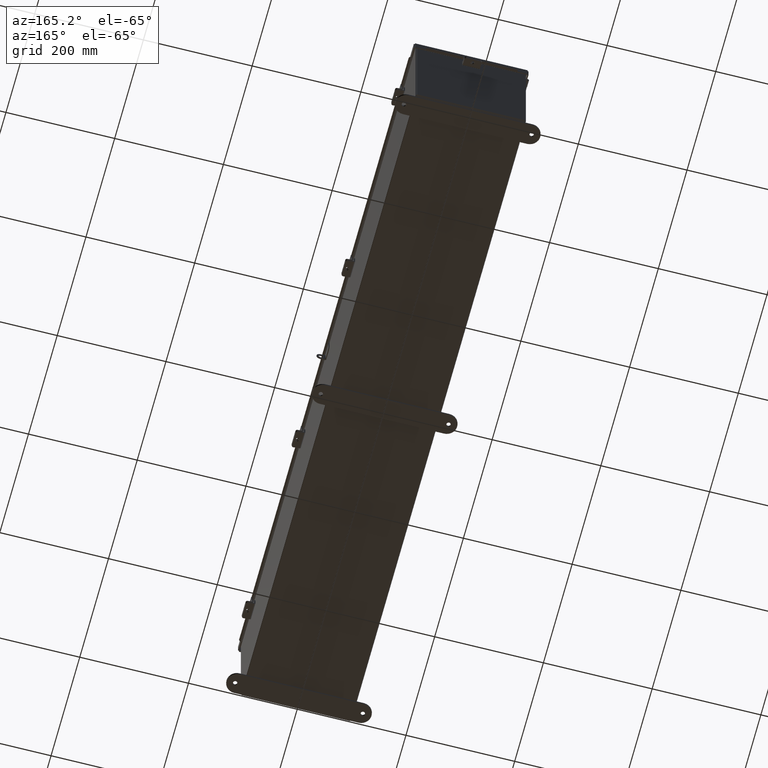
[diagram: clean part render]
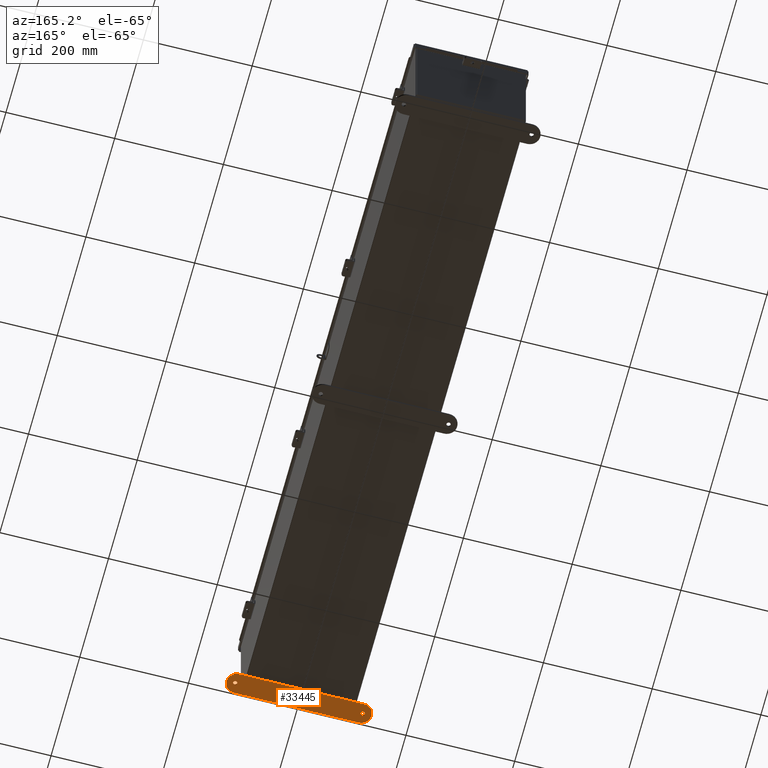
[diagram: same view with one face highlighted and labeled with its STEP entity id]
A machine part, auxiliary view. The second image highlights one B-rep face of the part: STEP entity #33445.
In plain terms, the highlighted planar face has unit normal (0, 0, -1).
Its self-contained STEP definition (entity closure, byte-faithful):
#302 = VERTEX_POINT ( 'NONE', #5280 ) ;
#826 = EDGE_LOOP ( 'NONE', ( #4222, #20937 ) ) ;
#994 = EDGE_CURVE ( 'NONE', #302, #26158, #13203, .T. ) ;
#1047 = ORIENTED_EDGE ( 'NONE', *, *, #28098, .F. ) ;
#2002 = VERTEX_POINT ( 'NONE', #11454 ) ;
#2132 = VECTOR ( 'NONE', #25458, 39.37007874015748100 ) ;
#2351 = CIRCLE ( 'NONE', #35566, 0.1564999999999992800 ) ;
#2485 = DIRECTION ( 'NONE',  ( 0.0000000000000000000, 0.0000000000000000000, -1.000000000000000000 ) ) ;
#2965 = VECTOR ( 'NONE', #33875, 39.37007874015748100 ) ;
#3538 = EDGE_LOOP ( 'NONE', ( #23013, #34866, #32052, #1047, #27850 ) ) ;
#3853 = VERTEX_POINT ( 'NONE', #30698 ) ;
#3913 = VERTEX_POINT ( 'NONE', #15419 ) ;
#4222 = ORIENTED_EDGE ( 'NONE', *, *, #13108, .T. ) ;
#4689 = DIRECTION ( 'NONE',  ( 0.0000000000000000000, 0.0000000000000000000, 1.000000000000000000 ) ) ;
#5280 = CARTESIAN_POINT ( 'NONE',  ( -4.499999999999999100, 1.162094064949611600, -0.1345000000000000100 ) ) ;
#5654 = VERTEX_POINT ( 'NONE', #20843 ) ;
#5904 = VERTEX_POINT ( 'NONE', #9669 ) ;
#5935 = AXIS2_PLACEMENT_3D ( 'NONE', #15117, #15109, #15071 ) ;
#6355 = ORIENTED_EDGE ( 'NONE', *, *, #34553, .F. ) ;
#7357 = AXIS2_PLACEMENT_3D ( 'NONE', #24711, #4689, #17646 ) ;
#8538 = CARTESIAN_POINT ( 'NONE',  ( -4.499999999999999100, -0.3379059350503894100, -0.1345000000000000100 ) ) ;
#9639 = EDGE_LOOP ( 'NONE', ( #10336, #6355 ) ) ;
#9669 = CARTESIAN_POINT ( 'NONE',  ( 4.499999999999999100, -0.3379059350503894100, -0.1345000000000000100 ) ) ;
#10336 = ORIENTED_EDGE ( 'NONE', *, *, #15352, .F. ) ;
#10364 = EDGE_CURVE ( 'NONE', #34980, #32183, #11058, .T. ) ;
#11058 = CIRCLE ( 'NONE', #31258, 0.1564999999999992800 ) ;
#11454 = CARTESIAN_POINT ( 'NONE',  ( 4.499999999999999100, 1.162094064949611600, -0.1345000000000000100 ) ) ;
#12457 = DIRECTION ( 'NONE',  ( 0.0000000000000000000, 0.0000000000000000000, -1.000000000000000000 ) ) ;
#13108 = EDGE_CURVE ( 'NONE', #32183, #34980, #2351, .T. ) ;
#13203 = CIRCLE ( 'NONE', #7357, 0.7499999999999998900 ) ;
#13216 = DIRECTION ( 'NONE',  ( 0.0000000000000000000, 0.0000000000000000000, 1.000000000000000000 ) ) ;
#13448 = EDGE_CURVE ( 'NONE', #5904, #3853, #20784, .T. ) ;
#15071 = DIRECTION ( 'NONE',  ( -1.000000000000000000, 0.0000000000000000000, 0.0000000000000000000 ) ) ;
#15109 = DIRECTION ( 'NONE',  ( 0.0000000000000000000, 0.0000000000000000000, 1.000000000000000000 ) ) ;
#15117 = CARTESIAN_POINT ( 'NONE',  ( 4.499999999999999100, 0.4120940649496110900, -0.1345000000000000100 ) ) ;
#15352 = EDGE_CURVE ( 'NONE', #5654, #3913, #29916, .T. ) ;
#15419 = CARTESIAN_POINT ( 'NONE',  ( 4.468500000000000600, 0.4120940649496067100, -0.1345000000000000100 ) ) ;
#15628 = FACE_BOUND ( 'NONE', #9639, .T. ) ;
#15778 = AXIS2_PLACEMENT_3D ( 'NONE', #29310, #12457, #32111 ) ;
#16433 = CARTESIAN_POINT ( 'NONE',  ( -4.499999999999999100, -0.3379059350503894100, -0.1345000000000000100 ) ) ;
#17388 = FACE_OUTER_BOUND ( 'NONE', #3538, .T. ) ;
#17646 = DIRECTION ( 'NONE',  ( 1.000000000000000000, 0.0000000000000000000, 0.0000000000000000000 ) ) ;
#18688 = EDGE_CURVE ( 'NONE', #3853, #2002, #29628, .T. ) ;
#20784 = CIRCLE ( 'NONE', #5935, 0.7500000000000010000 ) ;
#20843 = CARTESIAN_POINT ( 'NONE',  ( 4.781499999999999400, 0.4120940649496067100, -0.1345000000000000100 ) ) ;
#20937 = ORIENTED_EDGE ( 'NONE', *, *, #10364, .T. ) ;
#21667 = DIRECTION ( 'NONE',  ( -1.000000000000000000, 0.0000000000000000000, 0.0000000000000000000 ) ) ;
#21715 = CIRCLE ( 'NONE', #15778, 0.1564999999999992800 ) ;
#21749 = DIRECTION ( 'NONE',  ( -0.0000000000000000000, -0.0000000000000000000, 1.000000000000000000 ) ) ;
#21758 = CARTESIAN_POINT ( 'NONE',  ( -4.625000000000000000, 0.4120940649496067100, -0.1345000000000000100 ) ) ;
#22128 = DIRECTION ( 'NONE',  ( -1.000000000000000000, 0.0000000000000000000, 0.0000000000000000000 ) ) ;
#23013 = ORIENTED_EDGE ( 'NONE', *, *, #13448, .F. ) ;
#23019 = EDGE_CURVE ( 'NONE', #26158, #5904, #24571, .T. ) ;
#24571 = LINE ( 'NONE', #8538, #2132 ) ;
#24711 = CARTESIAN_POINT ( 'NONE',  ( -4.499999999999999100, 0.4120940649496110900, -0.1345000000000000100 ) ) ;
#25458 = DIRECTION ( 'NONE',  ( 1.000000000000000000, -1.214154663850783900E-016, 0.0000000000000000000 ) ) ;
#26158 = VERTEX_POINT ( 'NONE', #16433 ) ;
#26982 = DIRECTION ( 'NONE',  ( -1.000000000000000000, 0.0000000000000000000, 0.0000000000000000000 ) ) ;
#27011 = DIRECTION ( 'NONE',  ( 0.0000000000000000000, 0.0000000000000000000, -1.000000000000000000 ) ) ;
#27051 = CARTESIAN_POINT ( 'NONE',  ( 4.625000000000000000, 0.4120940649496067100, -0.1345000000000000100 ) ) ;
#27396 = CARTESIAN_POINT ( 'NONE',  ( -4.625000000000000000, 0.4120940649496067100, -0.1345000000000000100 ) ) ;
#27532 = AXIS2_PLACEMENT_3D ( 'NONE', #30065, #13216, #32879 ) ;
#27678 = CARTESIAN_POINT ( 'NONE',  ( 4.499999999999999100, 0.4120940649496110900, -0.1345000000000000100 ) ) ;
#27850 = ORIENTED_EDGE ( 'NONE', *, *, #18688, .F. ) ;
#28098 = EDGE_CURVE ( 'NONE', #2002, #302, #31081, .T. ) ;
#29310 = CARTESIAN_POINT ( 'NONE',  ( 4.625000000000000000, 0.4120940649496067100, -0.1345000000000000100 ) ) ;
#29628 = CIRCLE ( 'NONE', #27532, 0.7500000000000010000 ) ;
#29916 = CIRCLE ( 'NONE', #34934, 0.1564999999999992800 ) ;
#30065 = CARTESIAN_POINT ( 'NONE',  ( 4.499999999999999100, 0.4120940649496110900, -0.1345000000000000100 ) ) ;
#30572 = FACE_BOUND ( 'NONE', #826, .T. ) ;
#30698 = CARTESIAN_POINT ( 'NONE',  ( 5.250000000000000900, 0.4120940649496110900, -0.1345000000000000100 ) ) ;
#31047 = CARTESIAN_POINT ( 'NONE',  ( -4.499999999999999100, 1.162094064949611600, -0.1345000000000000100 ) ) ;
#31081 = LINE ( 'NONE', #31047, #2965 ) ;
#31258 = AXIS2_PLACEMENT_3D ( 'NONE', #27396, #33361, #33219 ) ;
#32052 = ORIENTED_EDGE ( 'NONE', *, *, #994, .F. ) ;
#32111 = DIRECTION ( 'NONE',  ( -1.000000000000000000, 0.0000000000000000000, 0.0000000000000000000 ) ) ;
#32183 = VERTEX_POINT ( 'NONE', #33249 ) ;
#32879 = DIRECTION ( 'NONE',  ( -1.000000000000000000, 0.0000000000000000000, 0.0000000000000000000 ) ) ;
#33219 = DIRECTION ( 'NONE',  ( -1.000000000000000000, 0.0000000000000000000, 0.0000000000000000000 ) ) ;
#33249 = CARTESIAN_POINT ( 'NONE',  ( -4.468500000000000600, 0.4120940649496067100, -0.1345000000000000100 ) ) ;
#33361 = DIRECTION ( 'NONE',  ( -0.0000000000000000000, -0.0000000000000000000, 1.000000000000000000 ) ) ;
#33445 = ADVANCED_FACE ( 'NONE', ( #17388, #30572, #15628 ), #36118, .T. ) ;
#33875 = DIRECTION ( 'NONE',  ( -1.000000000000000000, -1.214154663850783900E-016, 0.0000000000000000000 ) ) ;
#34281 = CARTESIAN_POINT ( 'NONE',  ( -4.781499999999999400, 0.4120940649496067100, -0.1345000000000000100 ) ) ;
#34553 = EDGE_CURVE ( 'NONE', #3913, #5654, #21715, .T. ) ;
#34866 = ORIENTED_EDGE ( 'NONE', *, *, #23019, .F. ) ;
#34934 = AXIS2_PLACEMENT_3D ( 'NONE', #27051, #27011, #26982 ) ;
#34980 = VERTEX_POINT ( 'NONE', #34281 ) ;
#35566 = AXIS2_PLACEMENT_3D ( 'NONE', #21758, #21749, #21667 ) ;
#36118 = PLANE ( 'NONE',  #36233 ) ;
#36233 = AXIS2_PLACEMENT_3D ( 'NONE', #27678, #2485, #22128 ) ;